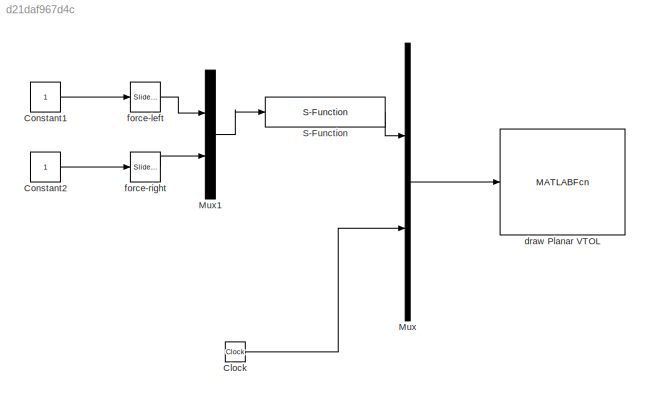
MODEL slx_d21daf967d4c
KIND model
CONFIG AbsTol = auto
CONFIG FixedStep = auto
CONFIG MaxStep = auto
CONFIG MinStep = auto
CONFIG RelTol = 1e-3
CONFIG SampleTimeConstraint = Unconstrained
CONFIG Solver = ode45
CONFIG SolverMode = Auto
CONFIG SolverName = ode45
CONFIG StartTime = 0.0
CONFIG StopTime = inf
BLOCK [Clock] Clock
BLOCK [Constant] Constant1
BLOCK [Constant] Constant2
BLOCK [Mux] Mux
  DisplayOption = bar
  Inputs = 2
  Ports = [2, 1]
BLOCK [Mux] Mux1
  DisplayOption = bar
  Inputs = 2
  Ports = [2, 1]
BLOCK [S-Function] S-Function
  FunctionName = planar_quad_dynamics
  Parameters = AP
  Ports = [1, 1]
BLOCK [MATLABFcn] draw Planar VTOL
  MATLABFcn = drawPlanarQuad(u)
  OutputDimensions = 0
  Ports = [1]
BLOCK [Reference] force-left  REF=simulink/Math
Operations/Slider
Gain
  Ports = [1, 1]
  SourceBlock = simulink/Math\nOperations/Slider\nGain
  SourceType = Slider Gain
  gain = 8.6636
  high = 10
  low = 0
BLOCK [Reference] force-right  REF=simulink/Math
Operations/Slider
Gain
  Ports = [1, 1]
  SourceBlock = simulink/Math\nOperations/Slider\nGain
  SourceType = Slider Gain
  gain = 7.36
  high = 10
  low = 0
LINE Clock:1 -> Mux:2
LINE Constant1:1 -> force-left:1
LINE Constant2:1 -> force-right:1
LINE Mux1:1 -> S-Function:1
LINE Mux:1 -> draw Planar VTOL:1
LINE S-Function:1 -> Mux:1
LINE force-left:1 -> Mux1:1
LINE force-right:1 -> Mux1:2
